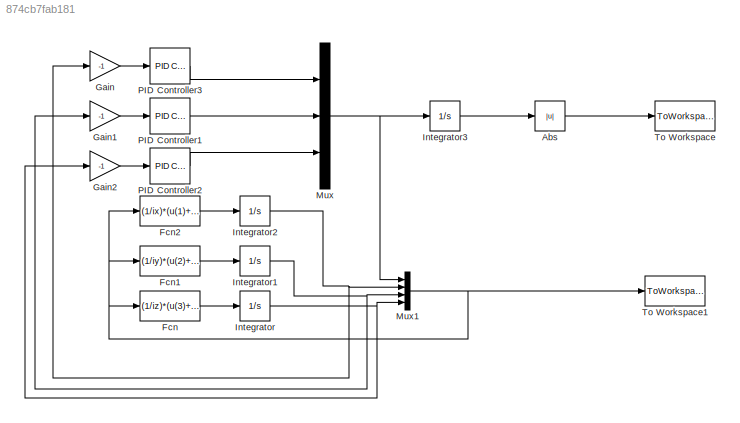
MODEL slx_874cb7fab181
KIND model
CONFIG AbsTol = auto
CONFIG EnableMultiTasking = off
CONFIG FixedStep = auto
CONFIG MaxStep = auto
CONFIG MinStep = auto
CONFIG RelTol = 1e-3
CONFIG SampleTimeConstraint = Unconstrained
CONFIG Solver = VariableStepAuto
CONFIG SolverName = VariableStepAuto
CONFIG StartTime = 0.0
CONFIG StopTime = 1500
BLOCK [Abs] Abs
  SaturateOnIntegerOverflow = off
BLOCK [Fcn] Fcn
  Expr = (1/iz)*(u(3)+u(4)*u(5)*(ix-iy))
BLOCK [Fcn] Fcn1
  Expr = (1/iy)*(u(2)+u(4)*u(6)*(iz-ix))
BLOCK [Fcn] Fcn2
  Expr = (1/ix)*(u(1)+u(5)*u(6)*(iy-iz))
BLOCK [Gain] Gain
  Gain = -1
  OutDataTypeStr = Inherit: Inherit via internal rule
  ParamDataTypeStr = Inherit: Inherit via internal rule
  SaturateOnIntegerOverflow = off
BLOCK [Gain] Gain1
  Gain = -1
  OutDataTypeStr = Inherit: Inherit via internal rule
  ParamDataTypeStr = Inherit: Inherit via internal rule
  SaturateOnIntegerOverflow = off
BLOCK [Gain] Gain2
  Gain = -1
  OutDataTypeStr = Inherit: Inherit via internal rule
  ParamDataTypeStr = Inherit: Inherit via internal rule
  SaturateOnIntegerOverflow = off
BLOCK [Integrator] Integrator
  InitialCondition = 5
  Ports = [1, 1]
BLOCK [Integrator] Integrator1
  InitialCondition = -3
  Ports = [1, 1]
BLOCK [Integrator] Integrator2
  InitialCondition = 4
  Ports = [1, 1]
BLOCK [Integrator] Integrator3
  Ports = [1, 1]
BLOCK [Mux] Mux
  DisplayOption = bar
  Inputs = 3
  Ports = [3, 1]
BLOCK [Mux] Mux1
  DisplayOption = bar
  Ports = [4, 1]
BLOCK [Reference] PID Controller1  REF=simulink/Continuous/PID Controller
  Ports = [1, 1]
  SourceBlock = simulink/Continuous/PID Controller
  SourceProductBaseCode = SL
  SourceProductName = Simulink
  SourceType = PID 1dof
BLOCK [Reference] PID Controller2  REF=simulink/Continuous/PID Controller
  Ports = [1, 1]
  SourceBlock = simulink/Continuous/PID Controller
  SourceProductBaseCode = SL
  SourceProductName = Simulink
  SourceType = PID 1dof
BLOCK [Reference] PID Controller3  REF=simulink/Continuous/PID Controller
  Ports = [1, 1]
  SourceBlock = simulink/Continuous/PID Controller
  SourceProductBaseCode = SL
  SourceProductName = Simulink
  SourceType = PID 1dof
BLOCK [ToWorkspace] To Workspace
  FixptAsFi = on
  MaxDataPoints = inf
  Ports = [1]
  SampleTime = -1
  Save2DSignal = 3-D array (concatenate along third dimension)
  SaveFormat = Timeseries
  VariableName = controleffort
BLOCK [ToWorkspace] To Workspace1
  FixptAsFi = on
  MaxDataPoints = inf
  Ports = [1]
  SampleTime = -1
  Save2DSignal = 3-D array (concatenate along third dimension)
  VariableName = u
LINE Abs:1 -> To Workspace:1
LINE Fcn1:1 -> Integrator1:1
LINE Fcn2:1 -> Integrator2:1
LINE Fcn:1 -> Integrator:1
LINE Gain1:1 -> PID Controller1:1
LINE Gain2:1 -> PID Controller2:1
LINE Gain:1 -> PID Controller3:1
NET Integrator1:1 -> Gain1:1, Mux1:3
NET Integrator2:1 -> Gain:1, Mux1:2
LINE Integrator3:1 -> Abs:1
NET Integrator:1 -> Gain2:1, Mux1:4
NET Mux1:1 -> Fcn1:1, Fcn2:1, Fcn:1, To Workspace1:1
NET Mux:1 -> Integrator3:1, Mux1:1
LINE PID Controller1:1 -> Mux:2
LINE PID Controller2:1 -> Mux:3
LINE PID Controller3:1 -> Mux:1
note: NET lines group one-source signal fan-out (src -> all destinations, sorted); 1:1 wires keep LINE
